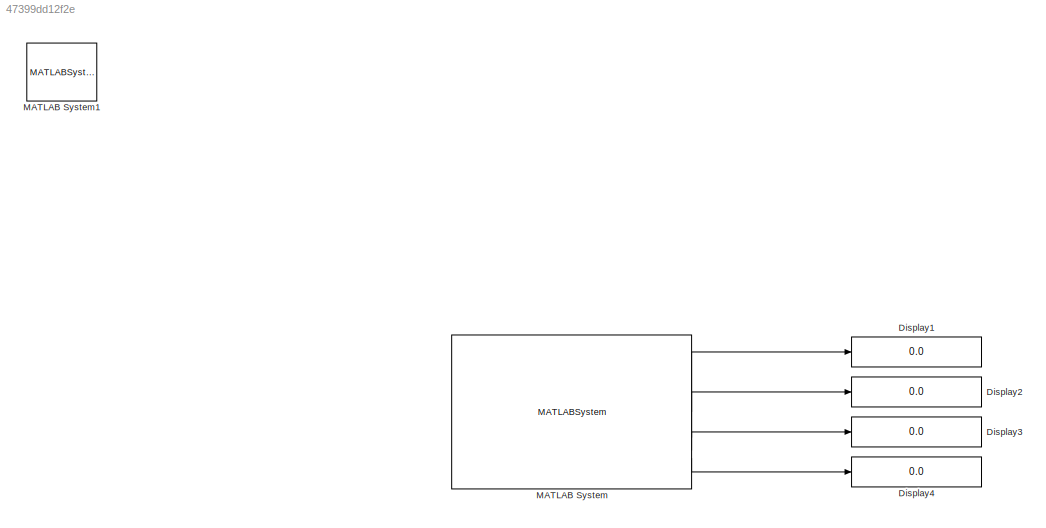
MODEL slx_47399dd12f2e
KIND model
CONFIG AbsTol = auto
CONFIG EnableMultiTasking = off
CONFIG FixedStep = auto
CONFIG MaxStep = auto
CONFIG MinStep = auto
CONFIG RelTol = 1e-3
CONFIG SampleTimeConstraint = Unconstrained
CONFIG SolverName = FixedStepAuto
CONFIG StartTime = 0.0
CONFIG StopTime = inf
BLOCK [Display] Display1
  Decimation = 8
  Format = long
BLOCK [Display] Display2
  Decimation = 8
  Format = long
BLOCK [Display] Display3
  Decimation = 8
  Format = long
BLOCK [Display] Display4
  Decimation = 8
  Format = long
BLOCK [MATLABSystem] MATLAB System
  MaskDisplay = color('white');plot([100,100,100,100]*1,[100,100,100,100]*1);plot([100,100,100,100]*0,[100,100,100,100]*0);color('blue');text(38, 92, 'IO Device Builder','horizontalAlignment', 'right');\ncolor('black');text(52,50,' ADS1115_Vread','horizontalAlignment','center');\nport_label('output',1,'V0');port_label('output',2,'V1');port_label('output',3,'V2');port_label('output',4,'V3');
  MaskType = ADS1115_Vread
  SampleTime = -1
  SetGain = int16( 1 )
  System = ADS1115_Vread
BLOCK [MATLABSystem] MATLAB System1
  Commented = through
LINE MATLAB System:1 -> Display1:1
LINE MATLAB System:2 -> Display2:1
LINE MATLAB System:3 -> Display3:1
LINE MATLAB System:4 -> Display4:1
